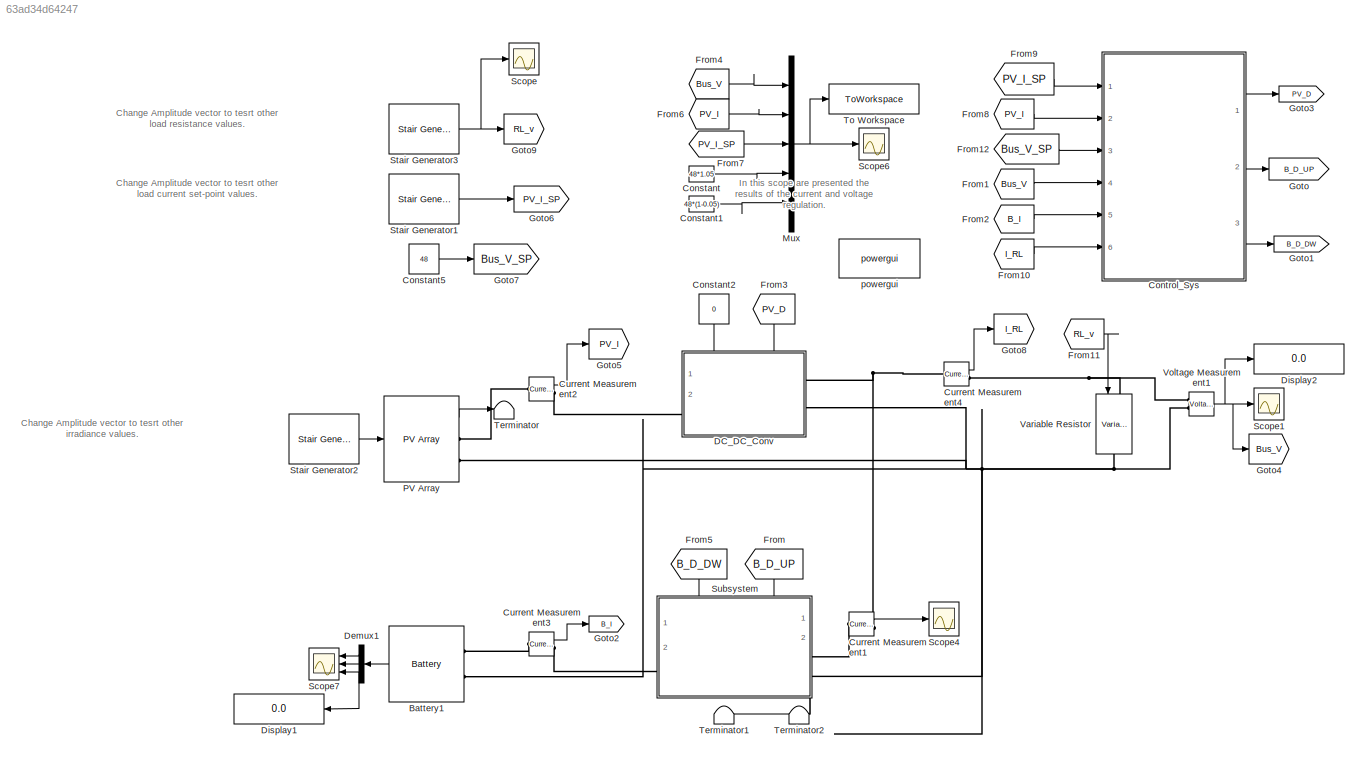
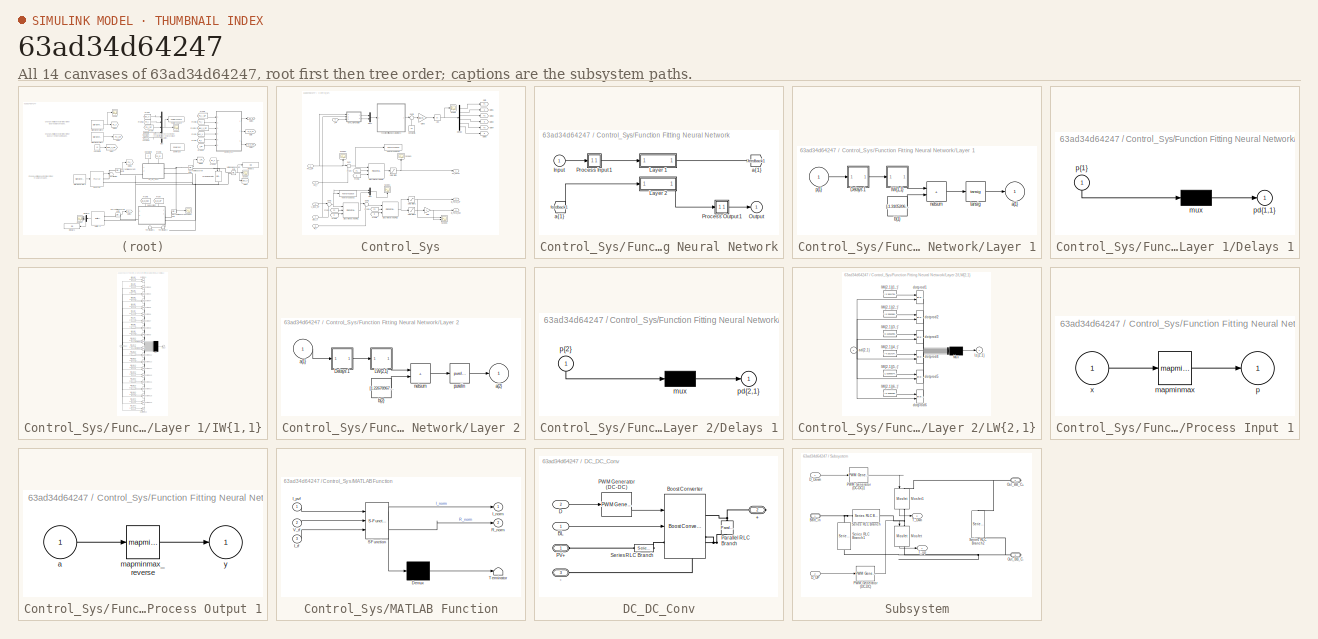
[diagram: thumbnail index - all 14 canvases of the model, root first then tree order]
MODEL slx_63ad34d64247
KIND model
CONFIG AbsTol = auto
CONFIG EnableMultiTasking = off
CONFIG FixedStep = auto
CONFIG MaxStep = auto
CONFIG MinStep = auto
CONFIG RelTol = 1e-3
CONFIG SampleTimeConstraint = Unconstrained
CONFIG Solver = VariableStepAuto
CONFIG SolverName = VariableStepAuto
CONFIG StartTime = 0.0
CONFIG StopTime = 0.08
BLOCK [Reference] Battery1  REF=electricdrivelib/Extra Sources/Battery
  Ports = [0, 1, 0, 0, 0, 2]
  SourceBlock = electricdrivelib/Extra Sources/Battery
  SourceProductBaseCode = PS
  SourceType = Battery
BLOCK [Constant] Constant
  Value = 48*1.05
BLOCK [Constant] Constant1
  Value = 48*(1-0.05)
BLOCK [Constant] Constant2
  NameLocation = left
  Value = 0
BLOCK [Constant] Constant5
  Value = 48
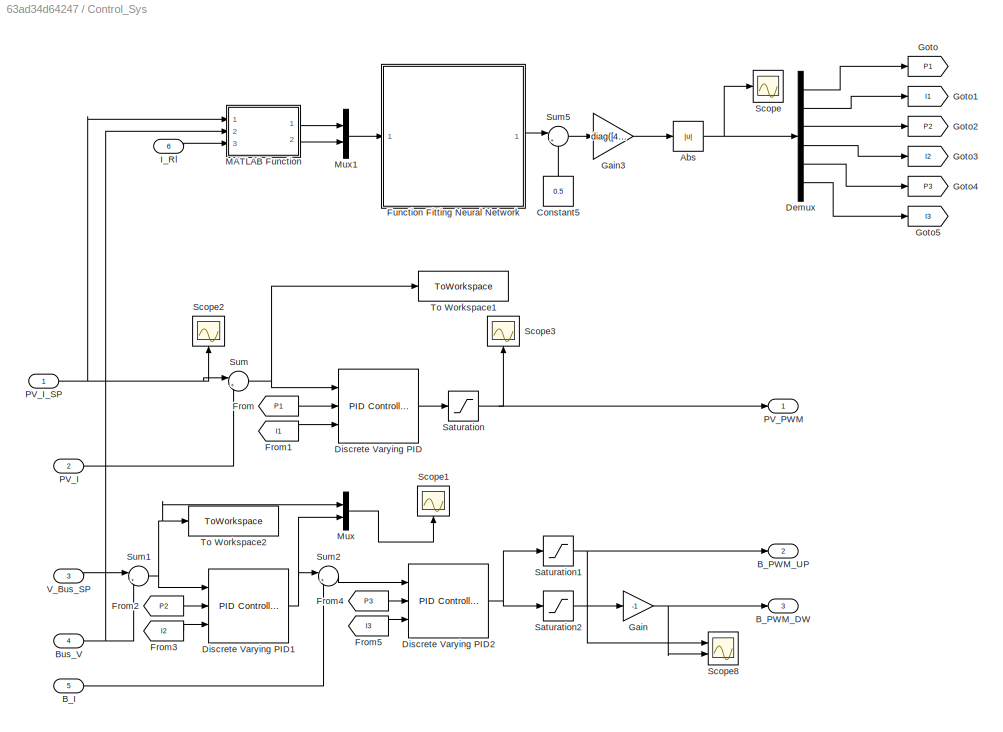
BLOCK [SubSystem] Control_Sys
  Ports = [6, 3]
  RequestExecContextInheritance = off
BLOCK [Abs] Control_Sys/Abs
  SaturateOnIntegerOverflow = off
BLOCK [Inport] Control_Sys/B_I
  Port = 5
BLOCK [Outport] Control_Sys/B_PWM_DW
  Port = 3
BLOCK [Outport] Control_Sys/B_PWM_UP
  Port = 2
BLOCK [Inport] Control_Sys/Bus_V
  Port = 4
BLOCK [Constant] Control_Sys/Constant5
  NameLocation = right
  Value = 0.5
BLOCK [Demux] Control_Sys/Demux
  Outputs = 6
  Ports = [1, 6]
BLOCK [Reference] Control_Sys/Discrete Varying PID  REF=simulink/Continuous/PID Controller
  Ports = [3, 1]
  SourceBlock = simulink/Continuous/PID Controller
  SourceProductBaseCode = SL
  SourceType = PID 1dof
BLOCK [Reference] Control_Sys/Discrete Varying PID1  REF=simulink/Continuous/PID Controller
  Ports = [3, 1]
  SourceBlock = simulink/Continuous/PID Controller
  SourceProductBaseCode = SL
  SourceType = PID 1dof
BLOCK [Reference] Control_Sys/Discrete Varying PID2  REF=simulink/Continuous/PID Controller
  Ports = [3, 1]
  SourceBlock = simulink/Continuous/PID Controller
  SourceProductBaseCode = SL
  SourceType = PID 1dof
BLOCK [From] Control_Sys/From
  GotoTag = P1
BLOCK [From] Control_Sys/From1
  GotoTag = I1
BLOCK [From] Control_Sys/From2
  GotoTag = P2
BLOCK [From] Control_Sys/From3
  GotoTag = I2
BLOCK [From] Control_Sys/From4
  GotoTag = P3
BLOCK [From] Control_Sys/From5
  GotoTag = I3
BLOCK [SubSystem] Control_Sys/Function Fitting Neural Network
  Ports = [1, 1]
  RequestExecContextInheritance = off
BLOCK [From] Control_Sys/Function Fitting Neural Network/ a{1} 
  GotoTag = feedback1
BLOCK [Inport] Control_Sys/Function Fitting Neural Network/Input
  PortDimensions = 2
BLOCK [SubSystem] Control_Sys/Function Fitting Neural Network/Layer 1
  Ports = [1, 1]
  RequestExecContextInheritance = off
BLOCK [SubSystem] Control_Sys/Function Fitting Neural Network/Layer 1/Delays 1
  Ports = [1, 1]
  RequestExecContextInheritance = off
BLOCK [Mux] Control_Sys/Function Fitting Neural Network/Layer 1/Delays 1/mux
  Inputs = 1
  Ports = [1, 1]
BLOCK [Outport] Control_Sys/Function Fitting Neural Network/Layer 1/Delays 1/pd{1,1}
BLOCK [Inport] Control_Sys/Function Fitting Neural Network/Layer 1/Delays 1/p{1}
  NameLocation = left
  PortDimensions = 2
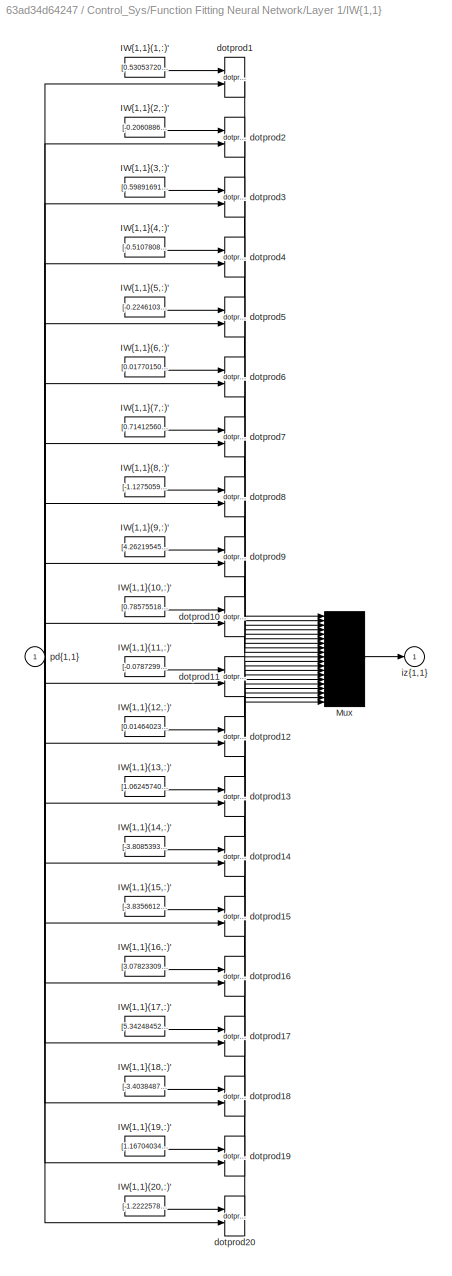
BLOCK [SubSystem] Control_Sys/Function Fitting Neural Network/Layer 1/IW{1,1}
  Ports = [1, 1]
  RequestExecContextInheritance = off
BLOCK [Constant] Control_Sys/Function Fitting Neural Network/Layer 1/IW{1,1}/IW{1,1}(1,:)'
  Value = [0.530537202849328703990750000230036675930023193359375;-0.93170058189036442097830104103195481002330780029296875]
BLOCK [Constant] Control_Sys/Function Fitting Neural Network/Layer 1/IW{1,1}/IW{1,1}(10,:)'
  Value = [0.78575518074178030136778261294239200651645660400390625;1.719865923180277977877494777203537523746490478515625]
BLOCK [Constant] Control_Sys/Function Fitting Neural Network/Layer 1/IW{1,1}/IW{1,1}(11,:)'
  Value = [-0.078729947185097903794570584068424068391323089599609375;-3.538793457607329440151033850270323455333709716796875]
BLOCK [Constant] Control_Sys/Function Fitting Neural Network/Layer 1/IW{1,1}/IW{1,1}(12,:)'
  Value = [0.01464023687002218021557808924626442603766918182373046875;19.188068379484388259470506454817950725555419921875]
BLOCK [Constant] Control_Sys/Function Fitting Neural Network/Layer 1/IW{1,1}/IW{1,1}(13,:)'
  Value = [1.062457403363729735445986079866997897624969482421875;-1.0274621823465202030689624734804965555667877197265625]
BLOCK [Constant] Control_Sys/Function Fitting Neural Network/Layer 1/IW{1,1}/IW{1,1}(14,:)'
  Value = [-3.80853931921231936286176278372295200824737548828125;0.246945279972525799649929467705078423023223876953125]
BLOCK [Constant] Control_Sys/Function Fitting Neural Network/Layer 1/IW{1,1}/IW{1,1}(15,:)'
  Value = [-3.835661282027629237489918523351661860942840576171875;0.2236372455440373829826938845144468359649181365966796875]
BLOCK [Constant] Control_Sys/Function Fitting Neural Network/Layer 1/IW{1,1}/IW{1,1}(16,:)'
  Value = [3.07823309157840441230291617102921009063720703125;1.0775663876200589630371950988774187862873077392578125]
BLOCK [Constant] Control_Sys/Function Fitting Neural Network/Layer 1/IW{1,1}/IW{1,1}(17,:)'
  Value = [5.3424845265237053126838873140513896942138671875;0.39399433543501760635052733050542883574962615966796875]
BLOCK [Constant] Control_Sys/Function Fitting Neural Network/Layer 1/IW{1,1}/IW{1,1}(18,:)'
  Value = [-3.40384877738879954023332174983806908130645751953125;-1.0695701714208800670036225710646249353885650634765625]
BLOCK [Constant] Control_Sys/Function Fitting Neural Network/Layer 1/IW{1,1}/IW{1,1}(19,:)'
  Value = [1.1670403446663180080378197089885361492633819580078125;0.000135647228773431104652258394338559810421429574489593505859375]
BLOCK [Constant] Control_Sys/Function Fitting Neural Network/Layer 1/IW{1,1}/IW{1,1}(2,:)'
  Value = [-0.2060886715055618434444539843752863816916942596435546875;1.0024249333076411527798654788057319819927215576171875]
BLOCK [Constant] Control_Sys/Function Fitting Neural Network/Layer 1/IW{1,1}/IW{1,1}(20,:)'
  Value = [-1.2222578567026847196075323154218494892120361328125;-0.416610744274138244946925624390132725238800048828125]
BLOCK [Constant] Control_Sys/Function Fitting Neural Network/Layer 1/IW{1,1}/IW{1,1}(3,:)'
  Value = [0.59891691323573292837778581088059581816196441650390625;-0.452562922458073668696698632629704661667346954345703125]
BLOCK [Constant] Control_Sys/Function Fitting Neural Network/Layer 1/IW{1,1}/IW{1,1}(4,:)'
  Value = [-0.51078085492399860623180529728415422141551971435546875;0.9640546377310383885372857548645697534084320068359375]
BLOCK [Constant] Control_Sys/Function Fitting Neural Network/Layer 1/IW{1,1}/IW{1,1}(5,:)'
  Value = [-0.2246103273741475725433502930172835476696491241455078125;-3.753190825413875497673643621965311467647552490234375]
BLOCK [Constant] Control_Sys/Function Fitting Neural Network/Layer 1/IW{1,1}/IW{1,1}(6,:)'
  Value = [0.0177015018523785198911735250248966622166335582733154296875;3.770543334500164878164696347084827721118927001953125]
BLOCK [Constant] Control_Sys/Function Fitting Neural Network/Layer 1/IW{1,1}/IW{1,1}(7,:)'
  Value = [0.714125607638294468415551818907260894775390625;1.472116896622708726027894954313524067401885986328125]
BLOCK [Constant] Control_Sys/Function Fitting Neural Network/Layer 1/IW{1,1}/IW{1,1}(8,:)'
  Value = [-1.127505998479669369061184625024907290935516357421875;-0.7111289479119060619183301241719163954257965087890625]
BLOCK [Constant] Control_Sys/Function Fitting Neural Network/Layer 1/IW{1,1}/IW{1,1}(9,:)'
  Value = [4.2621954554745826726502855308353900909423828125;0.1347616592227130205561280718029593117535114288330078125]
BLOCK [Mux] Control_Sys/Function Fitting Neural Network/Layer 1/IW{1,1}/Mux
  Inputs = 20
  Ports = [20, 1]
BLOCK [Reference] Control_Sys/Function Fitting Neural Network/Layer 1/IW{1,1}/dotprod1  REF=neural/Weight Functions/dotprod
  Ports = [2, 1]
  SourceBlock = neural/Weight Functions/dotprod
  SourceProductBaseCode = NN
  SourceType = DOTPROD
BLOCK [Reference] Control_Sys/Function Fitting Neural Network/Layer 1/IW{1,1}/dotprod10  REF=neural/Weight Functions/dotprod
  Ports = [2, 1]
  SourceBlock = neural/Weight Functions/dotprod
  SourceProductBaseCode = NN
  SourceType = DOTPROD
BLOCK [Reference] Control_Sys/Function Fitting Neural Network/Layer 1/IW{1,1}/dotprod11  REF=neural/Weight Functions/dotprod
  Ports = [2, 1]
  SourceBlock = neural/Weight Functions/dotprod
  SourceProductBaseCode = NN
  SourceType = DOTPROD
BLOCK [Reference] Control_Sys/Function Fitting Neural Network/Layer 1/IW{1,1}/dotprod12  REF=neural/Weight Functions/dotprod
  Ports = [2, 1]
  SourceBlock = neural/Weight Functions/dotprod
  SourceProductBaseCode = NN
  SourceType = DOTPROD
BLOCK [Reference] Control_Sys/Function Fitting Neural Network/Layer 1/IW{1,1}/dotprod13  REF=neural/Weight Functions/dotprod
  Ports = [2, 1]
  SourceBlock = neural/Weight Functions/dotprod
  SourceProductBaseCode = NN
  SourceType = DOTPROD
BLOCK [Reference] Control_Sys/Function Fitting Neural Network/Layer 1/IW{1,1}/dotprod14  REF=neural/Weight Functions/dotprod
  Ports = [2, 1]
  SourceBlock = neural/Weight Functions/dotprod
  SourceProductBaseCode = NN
  SourceType = DOTPROD
BLOCK [Reference] Control_Sys/Function Fitting Neural Network/Layer 1/IW{1,1}/dotprod15  REF=neural/Weight Functions/dotprod
  Ports = [2, 1]
  SourceBlock = neural/Weight Functions/dotprod
  SourceProductBaseCode = NN
  SourceType = DOTPROD
BLOCK [Reference] Control_Sys/Function Fitting Neural Network/Layer 1/IW{1,1}/dotprod16  REF=neural/Weight Functions/dotprod
  Ports = [2, 1]
  SourceBlock = neural/Weight Functions/dotprod
  SourceProductBaseCode = NN
  SourceType = DOTPROD
BLOCK [Reference] Control_Sys/Function Fitting Neural Network/Layer 1/IW{1,1}/dotprod17  REF=neural/Weight Functions/dotprod
  Ports = [2, 1]
  SourceBlock = neural/Weight Functions/dotprod
  SourceProductBaseCode = NN
  SourceType = DOTPROD
BLOCK [Reference] Control_Sys/Function Fitting Neural Network/Layer 1/IW{1,1}/dotprod18  REF=neural/Weight Functions/dotprod
  Ports = [2, 1]
  SourceBlock = neural/Weight Functions/dotprod
  SourceProductBaseCode = NN
  SourceType = DOTPROD
BLOCK [Reference] Control_Sys/Function Fitting Neural Network/Layer 1/IW{1,1}/dotprod19  REF=neural/Weight Functions/dotprod
  Ports = [2, 1]
  SourceBlock = neural/Weight Functions/dotprod
  SourceProductBaseCode = NN
  SourceType = DOTPROD
BLOCK [Reference] Control_Sys/Function Fitting Neural Network/Layer 1/IW{1,1}/dotprod2  REF=neural/Weight Functions/dotprod
  Ports = [2, 1]
  SourceBlock = neural/Weight Functions/dotprod
  SourceProductBaseCode = NN
  SourceType = DOTPROD
BLOCK [Reference] Control_Sys/Function Fitting Neural Network/Layer 1/IW{1,1}/dotprod20  REF=neural/Weight Functions/dotprod
  Ports = [2, 1]
  SourceBlock = neural/Weight Functions/dotprod
  SourceProductBaseCode = NN
  SourceType = DOTPROD
BLOCK [Reference] Control_Sys/Function Fitting Neural Network/Layer 1/IW{1,1}/dotprod3  REF=neural/Weight Functions/dotprod
  Ports = [2, 1]
  SourceBlock = neural/Weight Functions/dotprod
  SourceProductBaseCode = NN
  SourceType = DOTPROD
BLOCK [Reference] Control_Sys/Function Fitting Neural Network/Layer 1/IW{1,1}/dotprod4  REF=neural/Weight Functions/dotprod
  Ports = [2, 1]
  SourceBlock = neural/Weight Functions/dotprod
  SourceProductBaseCode = NN
  SourceType = DOTPROD
BLOCK [Reference] Control_Sys/Function Fitting Neural Network/Layer 1/IW{1,1}/dotprod5  REF=neural/Weight Functions/dotprod
  Ports = [2, 1]
  SourceBlock = neural/Weight Functions/dotprod
  SourceProductBaseCode = NN
  SourceType = DOTPROD
BLOCK [Reference] Control_Sys/Function Fitting Neural Network/Layer 1/IW{1,1}/dotprod6  REF=neural/Weight Functions/dotprod
  Ports = [2, 1]
  SourceBlock = neural/Weight Functions/dotprod
  SourceProductBaseCode = NN
  SourceType = DOTPROD
BLOCK [Reference] Control_Sys/Function Fitting Neural Network/Layer 1/IW{1,1}/dotprod7  REF=neural/Weight Functions/dotprod
  Ports = [2, 1]
  SourceBlock = neural/Weight Functions/dotprod
  SourceProductBaseCode = NN
  SourceType = DOTPROD
BLOCK [Reference] Control_Sys/Function Fitting Neural Network/Layer 1/IW{1,1}/dotprod8  REF=neural/Weight Functions/dotprod
  Ports = [2, 1]
  SourceBlock = neural/Weight Functions/dotprod
  SourceProductBaseCode = NN
  SourceType = DOTPROD
BLOCK [Reference] Control_Sys/Function Fitting Neural Network/Layer 1/IW{1,1}/dotprod9  REF=neural/Weight Functions/dotprod
  Ports = [2, 1]
  SourceBlock = neural/Weight Functions/dotprod
  SourceProductBaseCode = NN
  SourceType = DOTPROD
BLOCK [Outport] Control_Sys/Function Fitting Neural Network/Layer 1/IW{1,1}/iz{1,1}
BLOCK [Inport] Control_Sys/Function Fitting Neural Network/Layer 1/IW{1,1}/pd{1,1}
  PortDimensions = 2
BLOCK [Outport] Control_Sys/Function Fitting Neural Network/Layer 1/a{1}
  InitialOutput = [0;0;0;0;0;0;0;0;0;0;0;0;0;0;0;0;0;0;0;0]
BLOCK [Constant] Control_Sys/Function Fitting Neural Network/Layer 1/b{1}
  Value = [-1.3105206242096862911949983754311688244342803955078125;-0.78093997151720262461793709007906727492809295654296875;-0.96802773346524373376809080582461319863796234130859375;0.27628458503795627621002495288848876953125;0.05804090341829526433770070070750080049037933349609375;-0.47690994032020783688352594253956340253353118896484375;-0.47919400304328740869408420621766708791255950927734375;1.6746942686059...<+699ch>
BLOCK [Sum] Control_Sys/Function Fitting Neural Network/Layer 1/netsum
  IconShape = rectangular
  InputSameDT = on
  Inputs = 2
  OutDataTypeStr = Inherit: Same as first input
  Ports = [2, 1]
  SaturateOnIntegerOverflow = on
BLOCK [Inport] Control_Sys/Function Fitting Neural Network/Layer 1/p{1}
  PortDimensions = 2
BLOCK [Reference] Control_Sys/Function Fitting Neural Network/Layer 1/tansig  REF=neural/Transfer Functions/tansig
  Ports = [1, 1]
  SourceBlock = neural/Transfer Functions/tansig
  SourceProductBaseCode = NN
  SourceType = TANSIG
BLOCK [SubSystem] Control_Sys/Function Fitting Neural Network/Layer 2
  Ports = [1, 1]
  RequestExecContextInheritance = off
BLOCK [SubSystem] Control_Sys/Function Fitting Neural Network/Layer 2/Delays 1
  Ports = [1, 1]
  RequestExecContextInheritance = off
BLOCK [Mux] Control_Sys/Function Fitting Neural Network/Layer 2/Delays 1/mux
  Inputs = 1
  Ports = [1, 1]
BLOCK [Outport] Control_Sys/Function Fitting Neural Network/Layer 2/Delays 1/pd{2,1}
BLOCK [Inport] Control_Sys/Function Fitting Neural Network/Layer 2/Delays 1/p{2}
  NameLocation = left
  PortDimensions = 20
BLOCK [SubSystem] Control_Sys/Function Fitting Neural Network/Layer 2/LW{2,1}
  Ports = [1, 1]
  RequestExecContextInheritance = off
BLOCK [Constant] Control_Sys/Function Fitting Neural Network/Layer 2/LW{2,1}/IW{2,1}(1,:)'
  Value = [-3.36517397251916872136234815116040408611297607421875;0.65428202037868121720975977950729429721832275390625;6.6071855148608751306937847402878105640411376953125;-0.0978931999035662359087694994741468690335750579833984375;-1.307015964313751776870731191593222320079803466796875;1.6896653097461811210422411022591404616832733154296875;0.6320520445307618029318064145627431571483612060546875;1.60458641390402...<+695ch>
BLOCK [Constant] Control_Sys/Function Fitting Neural Network/Layer 2/LW{2,1}/IW{2,1}(2,:)'
  Value = [-0.3356380677146404423183412291109561920166015625;0.29563870064403641180206250282935798168182373046875;0.1930359420841606665764089711956330575048923492431640625;0.18882099354445325278817335856729187071323394775390625;0.3386678091089887487896703532896935939788818359375;0.0540247173621271059573700767941772937774658203125;-0.07039064675486654543146158857780392281711101531982421875;1.0233708265751144...<+704ch>
BLOCK [Constant] Control_Sys/Function Fitting Neural Network/Layer 2/LW{2,1}/IW{2,1}(3,:)'
  Value = [0.1635509859917323727263038790624705143272876739501953125;-0.2103157068725303446843355459350277669727802276611328125;-1.0767935612704497838620909533347003161907196044921875;-0.400893366144898621872272315158625133335590362548828125;-1.279980228460594116057791325147263705730438232421875;0.70370204684158166319463134641409851610660552978515625;0.259085526014026956698188541849958710372447967529296875;...<+721ch>
BLOCK [Constant] Control_Sys/Function Fitting Neural Network/Layer 2/LW{2,1}/IW{2,1}(4,:)'
  Value = [-4.331714740245754313718862249515950679779052734375;2.991313526877215966948142522596754133701324462890625;10.2351488754831994043570375652052462100982666015625;4.38260152656374657453852705657482147216796875;4.35042434990471260647382223396562039852142333984375;-5.03495306506535822421710690832696855068206787109375;-2.21358884779430820088919062982313334941864013671875;1.594588767979347121439559487043...<+681ch>
BLOCK [Constant] Control_Sys/Function Fitting Neural Network/Layer 2/LW{2,1}/IW{2,1}(5,:)'
  Value = [1.6296657485147514332624041344388388097286224365234375;0.56110338799388481678676043884479440748691558837890625;-0.6522257847681334208544967623311094939708709716796875;-0.52920871021113580212613669573329389095306396484375;-0.169125650872955279879761292249895632266998291015625;1.2244930515755341193795402432442642748355865478515625;-0.07961088221061439484937949373488663695752620697021484375;0.118337...<+736ch>
BLOCK [Constant] Control_Sys/Function Fitting Neural Network/Layer 2/LW{2,1}/IW{2,1}(6,:)'
  Value = [-0.459018906400530612987864742535748519003391265869140625;1.6163977786727452556903017466538585722446441650390625;3.433229120911255538572959267185069620609283447265625;0.735020594500215285194144598790444433689117431640625;1.0287916357919240084584089345298707485198974609375;-0.1817950475947720800906637350635719485580921173095703125;-0.52682269774995071909273747223778627812862396240234375;0.92981230...<+715ch>
BLOCK [Mux] Control_Sys/Function Fitting Neural Network/Layer 2/LW{2,1}/Mux
  Inputs = 6
  Ports = [6, 1]
BLOCK [Inport] Control_Sys/Function Fitting Neural Network/Layer 2/LW{2,1}/ad{2,1}
  PortDimensions = 20
BLOCK [Reference] Control_Sys/Function Fitting Neural Network/Layer 2/LW{2,1}/dotprod1  REF=neural/Weight Functions/dotprod
  Ports = [2, 1]
  SourceBlock = neural/Weight Functions/dotprod
  SourceProductBaseCode = NN
  SourceType = DOTPROD
BLOCK [Reference] Control_Sys/Function Fitting Neural Network/Layer 2/LW{2,1}/dotprod2  REF=neural/Weight Functions/dotprod
  Ports = [2, 1]
  SourceBlock = neural/Weight Functions/dotprod
  SourceProductBaseCode = NN
  SourceType = DOTPROD
BLOCK [Reference] Control_Sys/Function Fitting Neural Network/Layer 2/LW{2,1}/dotprod3  REF=neural/Weight Functions/dotprod
  Ports = [2, 1]
  SourceBlock = neural/Weight Functions/dotprod
  SourceProductBaseCode = NN
  SourceType = DOTPROD
BLOCK [Reference] Control_Sys/Function Fitting Neural Network/Layer 2/LW{2,1}/dotprod4  REF=neural/Weight Functions/dotprod
  Ports = [2, 1]
  SourceBlock = neural/Weight Functions/dotprod
  SourceProductBaseCode = NN
  SourceType = DOTPROD
BLOCK [Reference] Control_Sys/Function Fitting Neural Network/Layer 2/LW{2,1}/dotprod5  REF=neural/Weight Functions/dotprod
  Ports = [2, 1]
  SourceBlock = neural/Weight Functions/dotprod
  SourceProductBaseCode = NN
  SourceType = DOTPROD
BLOCK [Reference] Control_Sys/Function Fitting Neural Network/Layer 2/LW{2,1}/dotprod6  REF=neural/Weight Functions/dotprod
  Ports = [2, 1]
  SourceBlock = neural/Weight Functions/dotprod
  SourceProductBaseCode = NN
  SourceType = DOTPROD
BLOCK [Outport] Control_Sys/Function Fitting Neural Network/Layer 2/LW{2,1}/lz{2,1}
BLOCK [Inport] Control_Sys/Function Fitting Neural Network/Layer 2/a{1} 
  PortDimensions = 20
BLOCK [Outport] Control_Sys/Function Fitting Neural Network/Layer 2/a{2}
  InitialOutput = [0;0;0;0;0;0]
BLOCK [Constant] Control_Sys/Function Fitting Neural Network/Layer 2/b{2}
  Value = [1.2267896752450571096204612331348471343517303466796875;-1.400278550247907816128645208664238452911376953125;-0.677086481496933512147506917244754731655120849609375;3.4972523631969227864146887441165745258331298828125;0.900772588579268340680528126540593802928924560546875;1.3666866394756149727385263759060762822628021240234375]
BLOCK [Sum] Control_Sys/Function Fitting Neural Network/Layer 2/netsum
  IconShape = rectangular
  InputSameDT = on
  Inputs = 2
  OutDataTypeStr = Inherit: Same as first input
  Ports = [2, 1]
  SaturateOnIntegerOverflow = on
BLOCK [Reference] Control_Sys/Function Fitting Neural Network/Layer 2/purelin  REF=neural/Transfer Functions/purelin
  Ports = [1, 1]
  SourceBlock = neural/Transfer Functions/purelin
  SourceProductBaseCode = NN
  SourceType = PURELIN
BLOCK [Outport] Control_Sys/Function Fitting Neural Network/Output
  InitialOutput = [0;0;0;0;0;0]
BLOCK [SubSystem] Control_Sys/Function Fitting Neural Network/Process Input 1
  Ports = [1, 1]
  RequestExecContextInheritance = off
BLOCK [Reference] Control_Sys/Function Fitting Neural Network/Process Input 1/mapminmax  REF=neural/Processing Functions/mapminmax
  Ports = [1, 1]
  SourceBlock = neural/Processing Functions/mapminmax
  SourceProductBaseCode = NN
  SourceType = MAPMINMAX Preprocess
BLOCK [Outport] Control_Sys/Function Fitting Neural Network/Process Input 1/p
  PortDimensions = 2
BLOCK [Inport] Control_Sys/Function Fitting Neural Network/Process Input 1/x
  PortDimensions = 2
BLOCK [SubSystem] Control_Sys/Function Fitting Neural Network/Process Output 1
  Ports = [1, 1]
  RequestExecContextInheritance = off
BLOCK [Inport] Control_Sys/Function Fitting Neural Network/Process Output 1/a
  PortDimensions = 6
BLOCK [Reference] Control_Sys/Function Fitting Neural Network/Process Output 1/mapminmax_reverse  REF=neural/Processing Functions/mapminmax_reverse
  Ports = [1, 1]
  SourceBlock = neural/Processing Functions/mapminmax_reverse
  SourceProductBaseCode = NN
  SourceType = MAPMINMAX Reverse Process
BLOCK [Outport] Control_Sys/Function Fitting Neural Network/Process Output 1/y
  PortDimensions = 6
BLOCK [Goto] Control_Sys/Function Fitting Neural Network/a{1}
  GotoTag = feedback1
BLOCK [Gain] Control_Sys/Gain
  Gain = -1
BLOCK [Gain] Control_Sys/Gain3
  Gain = diag([496 5000 123 3000 771 2522])
  Multiplication = Matrix(u*K)
BLOCK [Goto] Control_Sys/Goto
  GotoTag = P1
BLOCK [Goto] Control_Sys/Goto1
  GotoTag = I1
BLOCK [Goto] Control_Sys/Goto2
  GotoTag = P2
BLOCK [Goto] Control_Sys/Goto3
  GotoTag = I2
BLOCK [Goto] Control_Sys/Goto4
  GotoTag = P3
BLOCK [Goto] Control_Sys/Goto5
  GotoTag = I3
BLOCK [Inport] Control_Sys/I_Rl
  Port = 6
BLOCK [SubSystem] Control_Sys/MATLAB Function
  ErrorFcn = Stateflow.Translate.translate
  PermitHierarchicalResolution = ExplicitOnly
  Ports = [3, 2]
  RequestExecContextInheritance = off
  SFBlockType = MATLAB Function
  TreatAsAtomicUnit = on
BLOCK [Demux] Control_Sys/MATLAB Function/ Demux 
  Outputs = 1
  Ports = [1, 1]
BLOCK [S-Function] Control_Sys/MATLAB Function/ SFunction 
  EnableBusSupport = on
  FunctionName = sf_sfun
  PortCounts = [3 3]
  Ports = [3, 3]
  SFcnIsStateOwnerBlock = off
  SFunctionDeploymentMode = off
  Tag = Stateflow S-Function 2
BLOCK [Terminator] Control_Sys/MATLAB Function/ Terminator 
BLOCK [Outport] Control_Sys/MATLAB Function/I_norm
BLOCK [Inport] Control_Sys/MATLAB Function/I_pvf
BLOCK [Inport] Control_Sys/MATLAB Function/I_rf
  Port = 3
BLOCK [Outport] Control_Sys/MATLAB Function/R_norm
  Port = 2
BLOCK [Inport] Control_Sys/MATLAB Function/V_rf
  Port = 2
BLOCK [Mux] Control_Sys/Mux
  DisplayOption = bar
  Inputs = 2
  Ports = [2, 1]
BLOCK [Mux] Control_Sys/Mux1
  DisplayOption = bar
  Inputs = 2
  Ports = [2, 1]
BLOCK [Inport] Control_Sys/PV_I
  Port = 2
BLOCK [Inport] Control_Sys/PV_I_SP
BLOCK [Outport] Control_Sys/PV_PWM
BLOCK [Saturate] Control_Sys/Saturation
  LowerLimit = 0
  UpperLimit = 1
BLOCK [Saturate] Control_Sys/Saturation1
  LowerLimit = 0
  UpperLimit = 0.99
BLOCK [Saturate] Control_Sys/Saturation2
  LowerLimit = -0.99
  UpperLimit = 0
BLOCK [Scope] Control_Sys/Scope
  Floating = off
  NumInputPorts = 1
  Ports = [1]
  ScopeSpecificationString = Simulink.scopes.TimeScopeBlockCfg('CurrentConfiguration', extmgr.ConfigurationSet(extmgr.Configuration('Core','General UI',true),extmgr.Configuration('Core','Source UI',true),extmgr.Configuration('Sources','WiredSimulink',true,'DataLoggingVariableName','ScopeData1'),extmgr.Configuration('Visuals','Time Domain',true,'SerializedDisplays',{struct('MinYLimReal','-414.71275','MaxYLimReal','3732.51477',...<+1493ch>
BLOCK [Scope] Control_Sys/Scope1
  Floating = off
  NameLocation = right
  NumInputPorts = 1
  Ports = [1]
  ScopeSpecificationString = Simulink.scopes.TimeScopeBlockCfg('CurrentConfiguration', extmgr.ConfigurationSet(extmgr.Configuration('Core','General UI',true),extmgr.Configuration('Core','Source UI',true),extmgr.Configuration('Sources','WiredSimulink',true,'DataLoggingVariableName','ScopeData2'),extmgr.Configuration('Visuals','Time Domain',true,'SerializedDisplays',{struct('MinYLimReal','-2479.34849','MaxYLimReal','22069.94167...<+1484ch>
BLOCK [Scope] Control_Sys/Scope2
  Floating = off
  NameLocation = right
  NumInputPorts = 1
  Ports = [1]
  ScopeSpecificationString = Simulink.scopes.TimeScopeBlockCfg('CurrentConfiguration', extmgr.ConfigurationSet(extmgr.Configuration('Core','General UI',true),extmgr.Configuration('Core','Source UI',true),extmgr.Configuration('Sources','WiredSimulink',true,'DataLoggingVariableName','ScopeData4'),extmgr.Configuration('Visuals','Time Domain',true,'SerializedDisplays',{struct('MinYLimReal','-8.2775','MaxYLimReal','74.4975','YLabe...<+1391ch>
BLOCK [Scope] Control_Sys/Scope3
  Floating = off
  NameLocation = right
  NumInputPorts = 1
  Ports = [1]
  ScopeSpecificationString = Simulink.scopes.TimeScopeBlockCfg('CurrentConfiguration', extmgr.ConfigurationSet(extmgr.Configuration('Core','General UI',true),extmgr.Configuration('Core','Source UI',true),extmgr.Configuration('Sources','WiredSimulink',true,'DataLoggingVariableName','ScopeData2'),extmgr.Configuration('Visuals','Time Domain',true,'SerializedDisplays',{struct('MinYLimReal','-0.125','MaxYLimReal','1.125','YLabelRe...<+1384ch>
BLOCK [Scope] Control_Sys/Scope8
  Floating = off
  NumInputPorts = 2
  Ports = [2]
  ScopeSpecificationString = Simulink.scopes.TimeScopeBlockCfg('CurrentConfiguration', extmgr.ConfigurationSet(extmgr.Configuration('Core','General UI',true),extmgr.Configuration('Core','Source UI',true),extmgr.Configuration('Sources','WiredSimulink',true,'DataLoggingVariableName','ScopeData8'),extmgr.Configuration('Visuals','Time Domain',true,'SerializedDisplays',{struct('MinYLimReal','-0.12375','MaxYLimReal','1.11375','YLab...<+2052ch>
BLOCK [Sum] Control_Sys/Sum
  Inputs = |+-
  Ports = [2, 1]
BLOCK [Sum] Control_Sys/Sum1
  Inputs = |+-
  Ports = [2, 1]
BLOCK [Sum] Control_Sys/Sum2
  Inputs = |+-
  Ports = [2, 1]
BLOCK [Sum] Control_Sys/Sum5
  Inputs = |++
  Ports = [2, 1]
BLOCK [ToWorkspace] Control_Sys/To Workspace1
  FixptAsFi = on
  MaxDataPoints = inf
  Ports = [1]
  SampleTime = -1
  SaveFormat = Timeseries
  VariableName = e_Ipva
BLOCK [ToWorkspace] Control_Sys/To Workspace2
  FixptAsFi = on
  MaxDataPoints = inf
  Ports = [1]
  SampleTime = -1
  SaveFormat = Timeseries
  VariableName = e_Vbusa
BLOCK [Inport] Control_Sys/V_Bus_SP
  Port = 3
BLOCK [Reference] Current Measurement1  REF=powerlib/Measurements/Current Measurement
  Ports = [0, 1, 0, 0, 0, 1, 1]
  SourceBlock = powerlib/Measurements/Current Measurement
  SourceProductBaseCode = PS
  SourceType = Current Measurement
  UserDataPersistent = on
BLOCK [Reference] Current Measurement2  REF=powerlib/Measurements/Current Measurement
  Ports = [0, 1, 0, 0, 0, 1, 1]
  SourceBlock = powerlib/Measurements/Current Measurement
  SourceProductBaseCode = PS
  SourceType = Current Measurement
  UserDataPersistent = on
BLOCK [Reference] Current Measurement3  REF=powerlib/Measurements/Current Measurement
  Ports = [0, 1, 0, 0, 0, 1, 1]
  SourceBlock = powerlib/Measurements/Current Measurement
  SourceProductBaseCode = PS
  SourceType = Current Measurement
  UserDataPersistent = on
BLOCK [Reference] Current Measurement4  REF=powerlib/Measurements/Current Measurement
  Ports = [0, 1, 0, 0, 0, 1, 1]
  SourceBlock = powerlib/Measurements/Current Measurement
  SourceProductBaseCode = PS
  SourceType = Current Measurement
  UserDataPersistent = on
BLOCK [SubSystem] DC_DC_Conv
  PortSchema = {"entries":[{"content":{"sides":[{"content":{"connectorIds":["LConn1"]},"type":"ConnectorPlacement.EquallySpacedRectSide","uuid":"00f7090b-60ae-413e-b809-f771630d6751"},{"content":{"connectorIds":["RConn1","RConn2"],"side":"RIGHT"},"type":"ConnectorPlacement.EquallySpacedRectSide","uuid":"f0025ab7-a9d8-466a-8e23-704d013948c1"},{"content":{"connectorIds":["In1","In2"],"side":"TOP"},"type":"Connecto...<+267ch>
  Ports = [2, 0, 0, 0, 0, 1, 2]
  RequestExecContextInheritance = off
BLOCK [PMIOPort] DC_DC_Conv/+
  NameLocation = top
  Port = 2
  Side = Right
BLOCK [PMIOPort] DC_DC_Conv/-
  NameLocation = top
  Port = 3
  Side = Right
BLOCK [Inport] DC_DC_Conv/BL
BLOCK [Reference] DC_DC_Conv/Boost Converter  REF=powerlib/Power
Electronics/Boost Converter
  Ports = [2, 0, 0, 0, 0, 1, 2]
  SourceBlock = powerlib/Power\nElectronics/Boost Converter
  SourceProductBaseCode = PS
  SourceType = Boost Converter
BLOCK [Inport] DC_DC_Conv/D
  Port = 2
BLOCK [PMIOPort] DC_DC_Conv/PV+
  Side = Left
BLOCK [Reference] DC_DC_Conv/PWM Generator (DC-DC)  REF=powerlib_meascontrol/Pulse & Signal
Generators/PWM Generator
(DC-DC)
  Ports = [1, 1]
  SourceBlock = powerlib_meascontrol/Pulse & Signal\nGenerators/PWM Generator\n(DC-DC)
  SourceProductBaseCode = PS
  SourceType = PWM Generator (DC-DC)
BLOCK [Reference] DC_DC_Conv/Parallel RLC Branch  REF=powerlib/Elements/Parallel RLC Branch
  AttributesFormatString = \n
  NameLocation = left
  Ports = [0, 0, 0, 0, 0, 1, 1]
  SourceBlock = powerlib/Elements/Parallel RLC Branch
  SourceProductBaseCode = PS
  SourceType = Parallel RLC Branch
BLOCK [Reference] DC_DC_Conv/Series RLC Branch  REF=powerlib/Elements/Series RLC Branch
  Ports = [0, 0, 0, 0, 0, 1, 1]
  SourceBlock = powerlib/Elements/Series RLC Branch
  SourceProductBaseCode = PS
  SourceType = Series RLC Branch
BLOCK [Demux] Demux1
  NameLocation = top
  Outputs = 3
  Ports = [1, 3]
BLOCK [Display] Display1
  Decimation = 1
  NameLocation = top
  Ports = [1]
BLOCK [Display] Display2
  Decimation = 1
  Ports = [1]
BLOCK [From] From
  GotoTag = B_D_UP
  NameLocation = left
BLOCK [From] From1
  GotoTag = Bus_V
BLOCK [From] From10
  GotoTag = I_RL
BLOCK [From] From11
  GotoTag = RL_v
BLOCK [From] From12
  GotoTag = Bus_V_SP
BLOCK [From] From2
  GotoTag = B_I
BLOCK [From] From3
  GotoTag = PV_D
  NameLocation = left
BLOCK [From] From4
  GotoTag = Bus_V
BLOCK [From] From5
  GotoTag = B_D_DW
  NameLocation = left
BLOCK [From] From6
  GotoTag = PV_I
BLOCK [From] From7
  GotoTag = PV_I_SP
BLOCK [From] From8
  GotoTag = PV_I
BLOCK [From] From9
  GotoTag = PV_I_SP
BLOCK [Goto] Goto
  GotoTag = B_D_UP
BLOCK [Goto] Goto1
  GotoTag = B_D_DW
BLOCK [Goto] Goto2
  GotoTag = B_I
BLOCK [Goto] Goto3
  GotoTag = PV_D
BLOCK [Goto] Goto4
  GotoTag = Bus_V
BLOCK [Goto] Goto5
  GotoTag = PV_I
BLOCK [Goto] Goto6
  GotoTag = PV_I_SP
BLOCK [Goto] Goto7
  GotoTag = Bus_V_SP
BLOCK [Goto] Goto8
  GotoTag = I_RL
BLOCK [Goto] Goto9
  GotoTag = RL_v
BLOCK [Mux] Mux
  DisplayOption = bar
  Inputs = 5
  Ports = [5, 1]
BLOCK [Reference] PV Array  REF=re_lib/Solar/PV Array
  Ports = [1, 1, 0, 0, 0, 0, 2]
  SourceBlock = re_lib/Solar/PV Array
  SourceProductBaseCode = PS
  SourceType = PV array
BLOCK [Scope] Scope
  Floating = off
  NumInputPorts = 1
  Ports = [1]
  ScopeSpecificationString = Simulink.scopes.TimeScopeBlockCfg('CurrentConfiguration', extmgr.ConfigurationSet(extmgr.Configuration('Core','General UI',true),extmgr.Configuration('Core','Source UI',true),extmgr.Configuration('Sources','WiredSimulink',true,'DataLoggingVariableName','ScopeData2'),extmgr.Configuration('Visuals','Time Domain',true,'SerializedDisplays',{struct('MinYLimReal','10.00000','MaxYLimReal','30.00000','YLa...<+1409ch>
BLOCK [Scope] Scope1
  Floating = off
  NumInputPorts = 1
  Ports = [1]
  ScopeSpecificationString = Simulink.scopes.TimeScopeBlockCfg('CurrentConfiguration', extmgr.ConfigurationSet(extmgr.Configuration('Core','General UI',true),extmgr.Configuration('Core','Source UI',true),extmgr.Configuration('Sources','WiredSimulink',true,'DataLoggingVariableName','ScopeData1'),extmgr.Configuration('Visuals','Time Domain',true,'SerializedDisplays',{struct('MinYLimReal','-10.82924','MaxYLimReal','97.50277','YL...<+1456ch>
BLOCK [Scope] Scope4
  Floating = off
  NumInputPorts = 1
  Ports = [1]
  ScopeSpecificationString = Simulink.scopes.TimeScopeBlockCfg('CurrentConfiguration', extmgr.ConfigurationSet(extmgr.Configuration('Core','General UI',true),extmgr.Configuration('Core','Source UI',true),extmgr.Configuration('Sources','WiredSimulink',true,'DataLoggingVariableName','ScopeData6'),extmgr.Configuration('Visuals','Time Domain',true,'SerializedDisplays',{struct('MinYLimReal','-63.7768','MaxYLimReal','34.55096','YLa...<+1502ch>
BLOCK [Scope] Scope6
  Floating = off
  NumInputPorts = 1
  Ports = [1]
  ScopeSpecificationString = Simulink.scopes.TimeScopeBlockCfg('CurrentConfiguration', extmgr.ConfigurationSet(extmgr.Configuration('Core','General UI',true,'FigureColor',[1 1 1]),extmgr.Configuration('Core','Source UI',true),extmgr.Configuration('Sources','WiredSimulink',true),extmgr.Configuration('Visuals','Time Domain',true,'SerializedDisplays',{struct('MinYLimReal','-10.7226','MaxYLimReal','96.50251','YLabelReal','','MinY...<+2331ch>
BLOCK [Scope] Scope7
  Floating = off
  NameLocation = top
  NumInputPorts = 3
  Ports = [3]
  ScopeSpecificationString = Simulink.scopes.TimeScopeBlockCfg('CurrentConfiguration', extmgr.ConfigurationSet(extmgr.Configuration('Core','General UI',true),extmgr.Configuration('Core','Source UI',true),extmgr.Configuration('Sources','WiredSimulink',true,'DataLoggingVariableName','ScopeData7'),extmgr.Configuration('Visuals','Time Domain',true,'SerializedDisplays',{struct('MinYLimReal','59.999996','MaxYLimReal','60.000028','Y...<+2732ch>
BLOCK [Reference] Stair Generator1  REF=eeStairGenerator/Stair Generator
  Ports = [0, 1]
  SourceBlock = eeStairGenerator/Stair Generator
  SourceProductBaseCode = PS
  SourceType = Stair Generator
BLOCK [Reference] Stair Generator2  REF=eeStairGenerator/Stair Generator
  Ports = [0, 1]
  SourceBlock = eeStairGenerator/Stair Generator
  SourceProductBaseCode = PS
  SourceType = Stair Generator
BLOCK [Reference] Stair Generator3  REF=eeStairGenerator/Stair Generator
  Ports = [0, 1]
  SourceBlock = eeStairGenerator/Stair Generator
  SourceProductBaseCode = PS
  SourceType = Stair Generator
BLOCK [SubSystem] Subsystem
  PortSchema = {"entries":[{"content":{"sides":[{"content":{"connectorIds":["LConn1"]},"type":"ConnectorPlacement.EquallySpacedRectSide","uuid":"a9530ab3-8980-4dba-8483-d408c1c24a59"},{"content":{"connectorIds":["RConn1","RConn2"],"side":"RIGHT"},"type":"ConnectorPlacement.EquallySpacedRectSide","uuid":"f691113d-6eb3-43ec-a6a4-3d8fb6884df6"},{"content":{"connectorIds":["In1","In2"],"side":"TOP"},"type":"Connecto...<+424ch>
  Ports = [2, 2, 0, 0, 0, 1, 2]
  RequestExecContextInheritance = off
BLOCK [PMIOPort] Subsystem/Batt_in
  Side = Left
BLOCK [Inport] Subsystem/D_Down
BLOCK [Inport] Subsystem/D_UP
  Port = 2
BLOCK [Reference] Subsystem/Mosfet  REF=powerlib/Power
Electronics/Mosfet
  NameLocation = left
  Ports = [1, 1, 0, 0, 0, 1, 1]
  SourceBlock = powerlib/Power\nElectronics/Mosfet
  SourceProductBaseCode = PS
  SourceType = Mosfet
BLOCK [Reference] Subsystem/Mosfet1  REF=powerlib/Power
Electronics/Mosfet
  NameLocation = left
  Ports = [1, 1, 0, 0, 0, 1, 1]
  SourceBlock = powerlib/Power\nElectronics/Mosfet
  SourceProductBaseCode = PS
  SourceType = Mosfet
BLOCK [PMIOPort] Subsystem/Out_BB_C+
  Port = 2
  Side = Right
BLOCK [PMIOPort] Subsystem/Out_BB_C-
  Port = 3
  Side = Right
BLOCK [Reference] Subsystem/PWM Generator (DC-DC)  REF=powerlib_meascontrol/Pulse & Signal
Generators/PWM Generator
(DC-DC)
  Ports = [1, 1]
  SourceBlock = powerlib_meascontrol/Pulse & Signal\nGenerators/PWM Generator\n(DC-DC)
  SourceProductBaseCode = PS
  SourceType = PWM Generator (DC-DC)
BLOCK [Reference] Subsystem/PWM Generator (DC-DC)1  REF=powerlib_meascontrol/Pulse & Signal
Generators/PWM Generator
(DC-DC)
  Ports = [1, 1]
  SourceBlock = powerlib_meascontrol/Pulse & Signal\nGenerators/PWM Generator\n(DC-DC)
  SourceProductBaseCode = PS
  SourceType = PWM Generator (DC-DC)
BLOCK [Reference] Subsystem/Series RLC Branch  REF=powerlib/Elements/Series RLC Branch
  Ports = [0, 0, 0, 0, 0, 1, 1]
  SourceBlock = powerlib/Elements/Series RLC Branch
  SourceProductBaseCode = PS
  SourceType = Series RLC Branch
BLOCK [Reference] Subsystem/Series RLC Branch1  REF=powerlib/Elements/Series RLC Branch
  NameLocation = left
  Ports = [0, 0, 0, 0, 0, 1, 1]
  SourceBlock = powerlib/Elements/Series RLC Branch
  SourceProductBaseCode = PS
  SourceType = Series RLC Branch
BLOCK [Reference] Subsystem/Series RLC Branch2  REF=powerlib/Elements/Series RLC Branch
  NameLocation = left
  Ports = [0, 0, 0, 0, 0, 1, 1]
  SourceBlock = powerlib/Elements/Series RLC Branch
  SourceProductBaseCode = PS
  SourceType = Series RLC Branch
BLOCK [Outport] Subsystem/T_Dwn
  NameLocation = top
  Port = 2
BLOCK [Outport] Subsystem/T_up
BLOCK [Terminator] Terminator
BLOCK [Terminator] Terminator1
BLOCK [Terminator] Terminator2
BLOCK [ToWorkspace] To Workspace
  FixptAsFi = on
  MaxDataPoints = inf
  Ports = [1]
  SampleTime = -1
  SaveFormat = Timeseries
  VariableName = graph
BLOCK [Reference] Variable Resistor  REF=powerlib/Elements/Variable Resistor
  NameLocation = left
  Ports = [1, 0, 0, 0, 0, 1, 1]
  SourceBlock = powerlib/Elements/Variable Resistor
  SourceProductBaseCode = PS
  SourceType = Variable Resistor
BLOCK [Reference] Voltage Measurement1  REF=powerlib/Measurements/Voltage Measurement
  Ports = [0, 1, 0, 0, 0, 2]
  SourceBlock = powerlib/Measurements/Voltage Measurement
  SourceProductBaseCode = PS
  SourceType = Voltage Measurement
  UserDataPersistent = on
BLOCK [Reference] powergui  REF=powerlib/powergui
  Ports = []
  Priority = 1
  SourceBlock = powerlib/powergui
  SourceProductBaseCode = PS
  SourceType = PSB option menu block
ANNOTATION (root): In this scope are presented the results of the current and voltage regulation.
ANNOTATION (root): Change Amplitude vector to tesrt other irradiance values.
ANNOTATION (root): Change Amplitude vector to tesrt other load current set-point values.
ANNOTATION (root): Change Amplitude vector to tesrt other load resistance values.
LINE Battery1:1 -> Demux1:1
LINE Constant1:1 -> Mux:5
LINE Constant2:1 -> DC_DC_Conv:1
LINE Constant5:1 -> Goto7:1
LINE Constant:1 -> Mux:4
NET Control_Sys/Abs:1 -> Control_Sys/Demux:1, Control_Sys/Scope:1
LINE Control_Sys/B_I:1 -> Control_Sys/Sum2:2
NET Control_Sys/Bus_V:1 -> Control_Sys/MATLAB Function:2, Control_Sys/Sum1:2
LINE Control_Sys/Constant5:1 -> Control_Sys/Sum5:2
LINE Control_Sys/Demux:1 -> Control_Sys/Goto:1
LINE Control_Sys/Demux:2 -> Control_Sys/Goto1:1
LINE Control_Sys/Demux:3 -> Control_Sys/Goto2:1
LINE Control_Sys/Demux:4 -> Control_Sys/Goto3:1
LINE Control_Sys/Demux:5 -> Control_Sys/Goto4:1
LINE Control_Sys/Demux:6 -> Control_Sys/Goto5:1
NET Control_Sys/Discrete Varying PID1:1 -> Control_Sys/Mux:2, Control_Sys/Sum2:1
NET Control_Sys/Discrete Varying PID2:1 -> Control_Sys/Saturation1:1, Control_Sys/Saturation2:1
LINE Control_Sys/Discrete Varying PID:1 -> Control_Sys/Saturation:1
LINE Control_Sys/From1:1 -> Control_Sys/Discrete Varying PID:3
LINE Control_Sys/From2:1 -> Control_Sys/Discrete Varying PID1:2
LINE Control_Sys/From3:1 -> Control_Sys/Discrete Varying PID1:3
LINE Control_Sys/From4:1 -> Control_Sys/Discrete Varying PID2:2
LINE Control_Sys/From5:1 -> Control_Sys/Discrete Varying PID2:3
LINE Control_Sys/From:1 -> Control_Sys/Discrete Varying PID:2
LINE Control_Sys/Function Fitting Neural Network/ a{1} :1 -> Control_Sys/Function Fitting Neural Network/Layer 2:1
LINE Control_Sys/Function Fitting Neural Network/Input:1 -> Control_Sys/Function Fitting Neural Network/Process Input 1:1
LINE Control_Sys/Function Fitting Neural Network/Layer 1/Delays 1/mux:1 -> Control_Sys/Function Fitting Neural Network/Layer 1/Delays 1/pd{1,1}:1
LINE Control_Sys/Function Fitting Neural Network/Layer 1/Delays 1/p{1}:1 -> Control_Sys/Function Fitting Neural Network/Layer 1/Delays 1/mux:1
LINE Control_Sys/Function Fitting Neural Network/Layer 1/Delays 1:1 -> Control_Sys/Function Fitting Neural Network/Layer 1/IW{1,1}:1
LINE Control_Sys/Function Fitting Neural Network/Layer 1/IW{1,1}/IW{1,1}(1,:)':1 -> Control_Sys/Function Fitting Neural Network/Layer 1/IW{1,1}/dotprod1:1
LINE Control_Sys/Function Fitting Neural Network/Layer 1/IW{1,1}/IW{1,1}(10,:)':1 -> Control_Sys/Function Fitting Neural Network/Layer 1/IW{1,1}/dotprod10:1
LINE Control_Sys/Function Fitting Neural Network/Layer 1/IW{1,1}/IW{1,1}(11,:)':1 -> Control_Sys/Function Fitting Neural Network/Layer 1/IW{1,1}/dotprod11:1
LINE Control_Sys/Function Fitting Neural Network/Layer 1/IW{1,1}/IW{1,1}(12,:)':1 -> Control_Sys/Function Fitting Neural Network/Layer 1/IW{1,1}/dotprod12:1
LINE Control_Sys/Function Fitting Neural Network/Layer 1/IW{1,1}/IW{1,1}(13,:)':1 -> Control_Sys/Function Fitting Neural Network/Layer 1/IW{1,1}/dotprod13:1
LINE Control_Sys/Function Fitting Neural Network/Layer 1/IW{1,1}/IW{1,1}(14,:)':1 -> Control_Sys/Function Fitting Neural Network/Layer 1/IW{1,1}/dotprod14:1
LINE Control_Sys/Function Fitting Neural Network/Layer 1/IW{1,1}/IW{1,1}(15,:)':1 -> Control_Sys/Function Fitting Neural Network/Layer 1/IW{1,1}/dotprod15:1
LINE Control_Sys/Function Fitting Neural Network/Layer 1/IW{1,1}/IW{1,1}(16,:)':1 -> Control_Sys/Function Fitting Neural Network/Layer 1/IW{1,1}/dotprod16:1
LINE Control_Sys/Function Fitting Neural Network/Layer 1/IW{1,1}/IW{1,1}(17,:)':1 -> Control_Sys/Function Fitting Neural Network/Layer 1/IW{1,1}/dotprod17:1
LINE Control_Sys/Function Fitting Neural Network/Layer 1/IW{1,1}/IW{1,1}(18,:)':1 -> Control_Sys/Function Fitting Neural Network/Layer 1/IW{1,1}/dotprod18:1
LINE Control_Sys/Function Fitting Neural Network/Layer 1/IW{1,1}/IW{1,1}(19,:)':1 -> Control_Sys/Function Fitting Neural Network/Layer 1/IW{1,1}/dotprod19:1
LINE Control_Sys/Function Fitting Neural Network/Layer 1/IW{1,1}/IW{1,1}(2,:)':1 -> Control_Sys/Function Fitting Neural Network/Layer 1/IW{1,1}/dotprod2:1
LINE Control_Sys/Function Fitting Neural Network/Layer 1/IW{1,1}/IW{1,1}(20,:)':1 -> Control_Sys/Function Fitting Neural Network/Layer 1/IW{1,1}/dotprod20:1
LINE Control_Sys/Function Fitting Neural Network/Layer 1/IW{1,1}/IW{1,1}(3,:)':1 -> Control_Sys/Function Fitting Neural Network/Layer 1/IW{1,1}/dotprod3:1
LINE Control_Sys/Function Fitting Neural Network/Layer 1/IW{1,1}/IW{1,1}(4,:)':1 -> Control_Sys/Function Fitting Neural Network/Layer 1/IW{1,1}/dotprod4:1
LINE Control_Sys/Function Fitting Neural Network/Layer 1/IW{1,1}/IW{1,1}(5,:)':1 -> Control_Sys/Function Fitting Neural Network/Layer 1/IW{1,1}/dotprod5:1
LINE Control_Sys/Function Fitting Neural Network/Layer 1/IW{1,1}/IW{1,1}(6,:)':1 -> Control_Sys/Function Fitting Neural Network/Layer 1/IW{1,1}/dotprod6:1
LINE Control_Sys/Function Fitting Neural Network/Layer 1/IW{1,1}/IW{1,1}(7,:)':1 -> Control_Sys/Function Fitting Neural Network/Layer 1/IW{1,1}/dotprod7:1
LINE Control_Sys/Function Fitting Neural Network/Layer 1/IW{1,1}/IW{1,1}(8,:)':1 -> Control_Sys/Function Fitting Neural Network/Layer 1/IW{1,1}/dotprod8:1
LINE Control_Sys/Function Fitting Neural Network/Layer 1/IW{1,1}/IW{1,1}(9,:)':1 -> Control_Sys/Function Fitting Neural Network/Layer 1/IW{1,1}/dotprod9:1
LINE Control_Sys/Function Fitting Neural Network/Layer 1/IW{1,1}/Mux:1 -> Control_Sys/Function Fitting Neural Network/Layer 1/IW{1,1}/iz{1,1}:1
LINE Control_Sys/Function Fitting Neural Network/Layer 1/IW{1,1}/dotprod10:1 -> Control_Sys/Function Fitting Neural Network/Layer 1/IW{1,1}/Mux:10
LINE Control_Sys/Function Fitting Neural Network/Layer 1/IW{1,1}/dotprod11:1 -> Control_Sys/Function Fitting Neural Network/Layer 1/IW{1,1}/Mux:11
LINE Control_Sys/Function Fitting Neural Network/Layer 1/IW{1,1}/dotprod12:1 -> Control_Sys/Function Fitting Neural Network/Layer 1/IW{1,1}/Mux:12
LINE Control_Sys/Function Fitting Neural Network/Layer 1/IW{1,1}/dotprod13:1 -> Control_Sys/Function Fitting Neural Network/Layer 1/IW{1,1}/Mux:13
LINE Control_Sys/Function Fitting Neural Network/Layer 1/IW{1,1}/dotprod14:1 -> Control_Sys/Function Fitting Neural Network/Layer 1/IW{1,1}/Mux:14
LINE Control_Sys/Function Fitting Neural Network/Layer 1/IW{1,1}/dotprod15:1 -> Control_Sys/Function Fitting Neural Network/Layer 1/IW{1,1}/Mux:15
LINE Control_Sys/Function Fitting Neural Network/Layer 1/IW{1,1}/dotprod16:1 -> Control_Sys/Function Fitting Neural Network/Layer 1/IW{1,1}/Mux:16
LINE Control_Sys/Function Fitting Neural Network/Layer 1/IW{1,1}/dotprod17:1 -> Control_Sys/Function Fitting Neural Network/Layer 1/IW{1,1}/Mux:17
LINE Control_Sys/Function Fitting Neural Network/Layer 1/IW{1,1}/dotprod18:1 -> Control_Sys/Function Fitting Neural Network/Layer 1/IW{1,1}/Mux:18
LINE Control_Sys/Function Fitting Neural Network/Layer 1/IW{1,1}/dotprod19:1 -> Control_Sys/Function Fitting Neural Network/Layer 1/IW{1,1}/Mux:19
LINE Control_Sys/Function Fitting Neural Network/Layer 1/IW{1,1}/dotprod1:1 -> Control_Sys/Function Fitting Neural Network/Layer 1/IW{1,1}/Mux:1
LINE Control_Sys/Function Fitting Neural Network/Layer 1/IW{1,1}/dotprod20:1 -> Control_Sys/Function Fitting Neural Network/Layer 1/IW{1,1}/Mux:20
LINE Control_Sys/Function Fitting Neural Network/Layer 1/IW{1,1}/dotprod2:1 -> Control_Sys/Function Fitting Neural Network/Layer 1/IW{1,1}/Mux:2
LINE Control_Sys/Function Fitting Neural Network/Layer 1/IW{1,1}/dotprod3:1 -> Control_Sys/Function Fitting Neural Network/Layer 1/IW{1,1}/Mux:3
LINE Control_Sys/Function Fitting Neural Network/Layer 1/IW{1,1}/dotprod4:1 -> Control_Sys/Function Fitting Neural Network/Layer 1/IW{1,1}/Mux:4
LINE Control_Sys/Function Fitting Neural Network/Layer 1/IW{1,1}/dotprod5:1 -> Control_Sys/Function Fitting Neural Network/Layer 1/IW{1,1}/Mux:5
LINE Control_Sys/Function Fitting Neural Network/Layer 1/IW{1,1}/dotprod6:1 -> Control_Sys/Function Fitting Neural Network/Layer 1/IW{1,1}/Mux:6
LINE Control_Sys/Function Fitting Neural Network/Layer 1/IW{1,1}/dotprod7:1 -> Control_Sys/Function Fitting Neural Network/Layer 1/IW{1,1}/Mux:7
LINE Control_Sys/Function Fitting Neural Network/Layer 1/IW{1,1}/dotprod8:1 -> Control_Sys/Function Fitting Neural Network/Layer 1/IW{1,1}/Mux:8
LINE Control_Sys/Function Fitting Neural Network/Layer 1/IW{1,1}/dotprod9:1 -> Control_Sys/Function Fitting Neural Network/Layer 1/IW{1,1}/Mux:9
NET Control_Sys/Function Fitting Neural Network/Layer 1/IW{1,1}/pd{1,1}:1 -> Control_Sys/Function Fitting Neural Network/Layer 1/IW{1,1}/dotprod10:2, Control_Sys/Function Fitting Neural Network/Layer 1/IW{1,1}/dotprod11:2, Control_Sys/Function Fitting Neural Network/Layer 1/IW{1,1}/dotprod12:2, Control_Sys/Function Fitting Neural Network/Layer 1/IW{1,1}/dotprod13:2, Control_Sys/Function Fitting Neural Network/Layer 1/IW{1,1}/dotprod14:2, Control_Sys/Function Fitting Neural Network/Layer 1/IW{1,1}/dotprod15:2, Control_Sys/Function Fitting Neural Network/Layer 1/IW{1,1}/dotprod16:2, Control_Sys/Function Fitting Neural Network/Layer 1/IW{1,1}/dotprod17:2, Control_Sys/Function Fitting Neural Network/Layer 1/IW{1,1}/dotprod18:2, Control_Sys/Function Fitting Neural Network/Layer 1/IW{1,1}/dotprod19:2, Control_Sys/Function Fitting Neural Network/Layer 1/IW{1,1}/dotprod1:2, Control_Sys/Function Fitting Neural Network/Layer 1/IW{1,1}/dotprod20:2, Control_Sys/Function Fitting Neural Network/Layer 1/IW{1,1}/dotprod2:2, Control_Sys/Function Fitting Neural Network/Layer 1/IW{1,1}/dotprod3:2, Control_Sys/Function Fitting Neural Network/Layer 1/IW{1,1}/dotprod4:2, Control_Sys/Function Fitting Neural Network/Layer 1/IW{1,1}/dotprod5:2, Control_Sys/Function Fitting Neural Network/Layer 1/IW{1,1}/dotprod6:2, Control_Sys/Function Fitting Neural Network/Layer 1/IW{1,1}/dotprod7:2, Control_Sys/Function Fitting Neural Network/Layer 1/IW{1,1}/dotprod8:2, Control_Sys/Function Fitting Neural Network/Layer 1/IW{1,1}/dotprod9:2
LINE Control_Sys/Function Fitting Neural Network/Layer 1/IW{1,1}:1 -> Control_Sys/Function Fitting Neural Network/Layer 1/netsum:1
LINE Control_Sys/Function Fitting Neural Network/Layer 1/b{1}:1 -> Control_Sys/Function Fitting Neural Network/Layer 1/netsum:2
LINE Control_Sys/Function Fitting Neural Network/Layer 1/netsum:1 -> Control_Sys/Function Fitting Neural Network/Layer 1/tansig:1
LINE Control_Sys/Function Fitting Neural Network/Layer 1/p{1}:1 -> Control_Sys/Function Fitting Neural Network/Layer 1/Delays 1:1
LINE Control_Sys/Function Fitting Neural Network/Layer 1/tansig:1 -> Control_Sys/Function Fitting Neural Network/Layer 1/a{1}:1
LINE Control_Sys/Function Fitting Neural Network/Layer 1:1 -> Control_Sys/Function Fitting Neural Network/a{1}:1
LINE Control_Sys/Function Fitting Neural Network/Layer 2/Delays 1/mux:1 -> Control_Sys/Function Fitting Neural Network/Layer 2/Delays 1/pd{2,1}:1
LINE Control_Sys/Function Fitting Neural Network/Layer 2/Delays 1/p{2}:1 -> Control_Sys/Function Fitting Neural Network/Layer 2/Delays 1/mux:1
LINE Control_Sys/Function Fitting Neural Network/Layer 2/Delays 1:1 -> Control_Sys/Function Fitting Neural Network/Layer 2/LW{2,1}:1
LINE Control_Sys/Function Fitting Neural Network/Layer 2/LW{2,1}/IW{2,1}(1,:)':1 -> Control_Sys/Function Fitting Neural Network/Layer 2/LW{2,1}/dotprod1:1
LINE Control_Sys/Function Fitting Neural Network/Layer 2/LW{2,1}/IW{2,1}(2,:)':1 -> Control_Sys/Function Fitting Neural Network/Layer 2/LW{2,1}/dotprod2:1
LINE Control_Sys/Function Fitting Neural Network/Layer 2/LW{2,1}/IW{2,1}(3,:)':1 -> Control_Sys/Function Fitting Neural Network/Layer 2/LW{2,1}/dotprod3:1
LINE Control_Sys/Function Fitting Neural Network/Layer 2/LW{2,1}/IW{2,1}(4,:)':1 -> Control_Sys/Function Fitting Neural Network/Layer 2/LW{2,1}/dotprod4:1
LINE Control_Sys/Function Fitting Neural Network/Layer 2/LW{2,1}/IW{2,1}(5,:)':1 -> Control_Sys/Function Fitting Neural Network/Layer 2/LW{2,1}/dotprod5:1
LINE Control_Sys/Function Fitting Neural Network/Layer 2/LW{2,1}/IW{2,1}(6,:)':1 -> Control_Sys/Function Fitting Neural Network/Layer 2/LW{2,1}/dotprod6:1
LINE Control_Sys/Function Fitting Neural Network/Layer 2/LW{2,1}/Mux:1 -> Control_Sys/Function Fitting Neural Network/Layer 2/LW{2,1}/lz{2,1}:1
NET Control_Sys/Function Fitting Neural Network/Layer 2/LW{2,1}/ad{2,1}:1 -> Control_Sys/Function Fitting Neural Network/Layer 2/LW{2,1}/dotprod1:2, Control_Sys/Function Fitting Neural Network/Layer 2/LW{2,1}/dotprod2:2, Control_Sys/Function Fitting Neural Network/Layer 2/LW{2,1}/dotprod3:2, Control_Sys/Function Fitting Neural Network/Layer 2/LW{2,1}/dotprod4:2, Control_Sys/Function Fitting Neural Network/Layer 2/LW{2,1}/dotprod5:2, Control_Sys/Function Fitting Neural Network/Layer 2/LW{2,1}/dotprod6:2
LINE Control_Sys/Function Fitting Neural Network/Layer 2/LW{2,1}/dotprod1:1 -> Control_Sys/Function Fitting Neural Network/Layer 2/LW{2,1}/Mux:1
LINE Control_Sys/Function Fitting Neural Network/Layer 2/LW{2,1}/dotprod2:1 -> Control_Sys/Function Fitting Neural Network/Layer 2/LW{2,1}/Mux:2
LINE Control_Sys/Function Fitting Neural Network/Layer 2/LW{2,1}/dotprod3:1 -> Control_Sys/Function Fitting Neural Network/Layer 2/LW{2,1}/Mux:3
LINE Control_Sys/Function Fitting Neural Network/Layer 2/LW{2,1}/dotprod4:1 -> Control_Sys/Function Fitting Neural Network/Layer 2/LW{2,1}/Mux:4
LINE Control_Sys/Function Fitting Neural Network/Layer 2/LW{2,1}/dotprod5:1 -> Control_Sys/Function Fitting Neural Network/Layer 2/LW{2,1}/Mux:5
LINE Control_Sys/Function Fitting Neural Network/Layer 2/LW{2,1}/dotprod6:1 -> Control_Sys/Function Fitting Neural Network/Layer 2/LW{2,1}/Mux:6
LINE Control_Sys/Function Fitting Neural Network/Layer 2/LW{2,1}:1 -> Control_Sys/Function Fitting Neural Network/Layer 2/netsum:1
LINE Control_Sys/Function Fitting Neural Network/Layer 2/a{1} :1 -> Control_Sys/Function Fitting Neural Network/Layer 2/Delays 1:1
LINE Control_Sys/Function Fitting Neural Network/Layer 2/b{2}:1 -> Control_Sys/Function Fitting Neural Network/Layer 2/netsum:2
LINE Control_Sys/Function Fitting Neural Network/Layer 2/netsum:1 -> Control_Sys/Function Fitting Neural Network/Layer 2/purelin:1
LINE Control_Sys/Function Fitting Neural Network/Layer 2/purelin:1 -> Control_Sys/Function Fitting Neural Network/Layer 2/a{2}:1
LINE Control_Sys/Function Fitting Neural Network/Layer 2:1 -> Control_Sys/Function Fitting Neural Network/Process Output 1:1
LINE Control_Sys/Function Fitting Neural Network/Process Input 1/mapminmax:1 -> Control_Sys/Function Fitting Neural Network/Process Input 1/p:1
LINE Control_Sys/Function Fitting Neural Network/Process Input 1/x:1 -> Control_Sys/Function Fitting Neural Network/Process Input 1/mapminmax:1
LINE Control_Sys/Function Fitting Neural Network/Process Input 1:1 -> Control_Sys/Function Fitting Neural Network/Layer 1:1
LINE Control_Sys/Function Fitting Neural Network/Process Output 1/a:1 -> Control_Sys/Function Fitting Neural Network/Process Output 1/mapminmax_reverse:1
LINE Control_Sys/Function Fitting Neural Network/Process Output 1/mapminmax_reverse:1 -> Control_Sys/Function Fitting Neural Network/Process Output 1/y:1
LINE Control_Sys/Function Fitting Neural Network/Process Output 1:1 -> Control_Sys/Function Fitting Neural Network/Output:1
LINE Control_Sys/Function Fitting Neural Network:1 -> Control_Sys/Sum5:1
LINE Control_Sys/Gain3:1 -> Control_Sys/Abs:1
NET Control_Sys/Gain:1 -> Control_Sys/B_PWM_DW:1, Control_Sys/Scope8:2
LINE Control_Sys/I_Rl:1 -> Control_Sys/MATLAB Function:3
LINE Control_Sys/MATLAB Function:1 -> Control_Sys/Mux1:1
LINE Control_Sys/MATLAB Function:2 -> Control_Sys/Mux1:2
LINE Control_Sys/Mux1:1 -> Control_Sys/Function Fitting Neural Network:1
LINE Control_Sys/Mux:1 -> Control_Sys/Scope1:1
LINE Control_Sys/PV_I:1 -> Control_Sys/Sum:2
NET Control_Sys/PV_I_SP:1 -> Control_Sys/MATLAB Function:1, Control_Sys/Scope2:1, Control_Sys/Sum:1
NET Control_Sys/Saturation1:1 -> Control_Sys/B_PWM_UP:1, Control_Sys/Scope8:1
LINE Control_Sys/Saturation2:1 -> Control_Sys/Gain:1
NET Control_Sys/Saturation:1 -> Control_Sys/PV_PWM:1, Control_Sys/Scope3:1
NET Control_Sys/Sum1:1 -> Control_Sys/Discrete Varying PID1:1, Control_Sys/Mux:1, Control_Sys/To Workspace2:1
LINE Control_Sys/Sum2:1 -> Control_Sys/Discrete Varying PID2:1
LINE Control_Sys/Sum5:1 -> Control_Sys/Gain3:1
NET Control_Sys/Sum:1 -> Control_Sys/Discrete Varying PID:1, Control_Sys/To Workspace1:1
LINE Control_Sys/V_Bus_SP:1 -> Control_Sys/Sum1:1
LINE Control_Sys:1 -> Goto3:1
LINE Control_Sys:2 -> Goto:1
LINE Control_Sys:3 -> Goto1:1
LINE Current Measurement1:1 -> Scope4:1
LINE Current Measurement2:1 -> Goto5:1
LINE Current Measurement3:1 -> Goto2:1
LINE Current Measurement4:1 -> Goto8:1
LINE DC_DC_Conv/BL:1 -> DC_DC_Conv/Boost Converter:2
LINE DC_DC_Conv/D:1 -> DC_DC_Conv/PWM Generator (DC-DC):1
LINE DC_DC_Conv/PWM Generator (DC-DC):1 -> DC_DC_Conv/Boost Converter:1
LINE Demux1:1 -> Scope7:1
LINE Demux1:2 -> Scope7:2
NET Demux1:3 -> Display1:1, Scope7:3
LINE From10:1 -> Control_Sys:6
LINE From11:1 -> Variable Resistor:1
LINE From12:1 -> Control_Sys:3
LINE From1:1 -> Control_Sys:4
LINE From2:1 -> Control_Sys:5
LINE From3:1 -> DC_DC_Conv:2
LINE From4:1 -> Mux:1
LINE From5:1 -> Subsystem:1
LINE From6:1 -> Mux:2
LINE From7:1 -> Mux:3
LINE From8:1 -> Control_Sys:2
LINE From9:1 -> Control_Sys:1
LINE From:1 -> Subsystem:2
NET Mux:1 -> Scope6:1, To Workspace:1
LINE PV Array:1 -> Terminator:1
LINE Stair Generator1:1 -> Goto6:1
LINE Stair Generator2:1 -> PV Array:1
NET Stair Generator3:1 -> Goto9:1, Scope:1
LINE Subsystem/D_Down:1 -> Subsystem/PWM Generator (DC-DC)1:1
LINE Subsystem/D_UP:1 -> Subsystem/PWM Generator (DC-DC):1
LINE Subsystem/Mosfet1:1 -> Subsystem/T_Dwn:1
LINE Subsystem/Mosfet:1 -> Subsystem/T_up:1
LINE Subsystem/PWM Generator (DC-DC)1:1 -> Subsystem/Mosfet1:1
LINE Subsystem/PWM Generator (DC-DC):1 -> Subsystem/Mosfet:1
LINE Subsystem:1 -> Terminator1:1
LINE Subsystem:2 -> Terminator2:1
NET Voltage Measurement1:1 -> Display2:1, Goto4:1, Scope1:1
PLINE Battery1:LConn1 -- Current Measurement3:LConn1
PNET net1: Battery1:LConn2 -- DC_DC_Conv:RConn2 -- PV Array:RConn2 -- Subsystem:RConn2 -- Variable Resistor:RConn1 -- Voltage Measurement1:LConn2
PLINE Current Measurement1:LConn1 -- Subsystem:RConn1
PNET net2: Current Measurement1:RConn1 -- Current Measurement4:LConn1 -- DC_DC_Conv:RConn1
PLINE Current Measurement2:LConn1 -- PV Array:RConn1
PLINE Current Measurement2:RConn1 -- DC_DC_Conv:LConn1
PLINE Current Measurement3:RConn1 -- Subsystem:LConn1
PNET net3: Current Measurement4:RConn1 -- Variable Resistor:LConn1 -- Voltage Measurement1:LConn1
PNET net4: DC_DC_Conv/+:RConn1 -- DC_DC_Conv/Boost Converter:RConn1 -- DC_DC_Conv/Parallel RLC Branch:LConn1
PNET net5: DC_DC_Conv/-:RConn1 -- DC_DC_Conv/Boost Converter:RConn2 -- DC_DC_Conv/Parallel RLC Branch:RConn1
PLINE DC_DC_Conv/Boost Converter:LConn1 -- DC_DC_Conv/Series RLC Branch:RConn1
PLINE DC_DC_Conv/PV+:RConn1 -- DC_DC_Conv/Series RLC Branch:LConn1
PNET net6: Subsystem/Batt_in:RConn1 -- Subsystem/Series RLC Branch1:LConn1 -- Subsystem/Series RLC Branch:LConn1
PNET net7: Subsystem/Mosfet1:LConn1 -- Subsystem/Out_BB_C+:RConn1 -- Subsystem/Series RLC Branch2:LConn1
PNET net8: Subsystem/Mosfet1:RConn1 -- Subsystem/Mosfet:LConn1 -- Subsystem/Series RLC Branch:RConn1
PNET net9: Subsystem/Mosfet:RConn1 -- Subsystem/Out_BB_C-:RConn1 -- Subsystem/Series RLC Branch1:RConn1 -- Subsystem/Series RLC Branch2:RConn1
note: NET lines group one-source signal fan-out (src -> all destinations, sorted); 1:1 wires keep LINE; PNET lines group multi-terminal physical nets as a canonical sorted terminal list (undirected conserving connections); 2-terminal nets keep the pairwise PLINE form
CHART Control_Sys/MATLAB Function states=1 transitions=1
  STATE_LABEL 'eML_blk_kernel()'
  STATE_LABEL 'SCRIPT:\nfunction [I_norm,R_norm] = fcn(I_pvf,V_rf,I_rf)\n    if I_pvf==0\n        R_norm=20;\n    else\n        R_norm=V_rf/I_rf;\n    end\n    %Adjust limits of R\n    if R_norm>20\n        R_norm=20;\n    end\n    if R_norm<1\n        R_norm=1;\n    end\n    I_norm=(I_pvf/66.22)-0.5;\n    R_norm=(R_norm/20)-0.5;\n'
CHART  states=0 transitions=0
